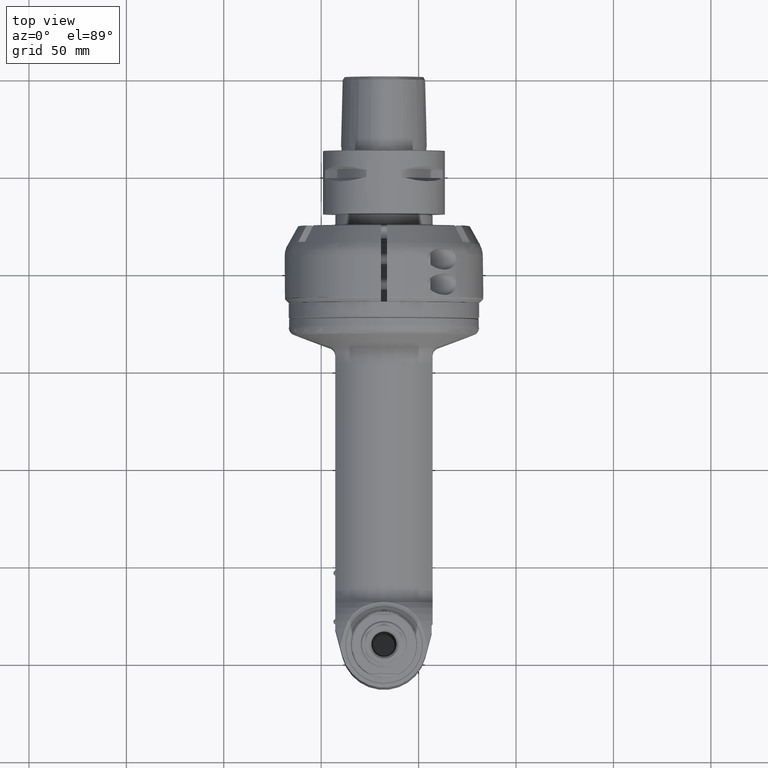
[diagram: clean part render]
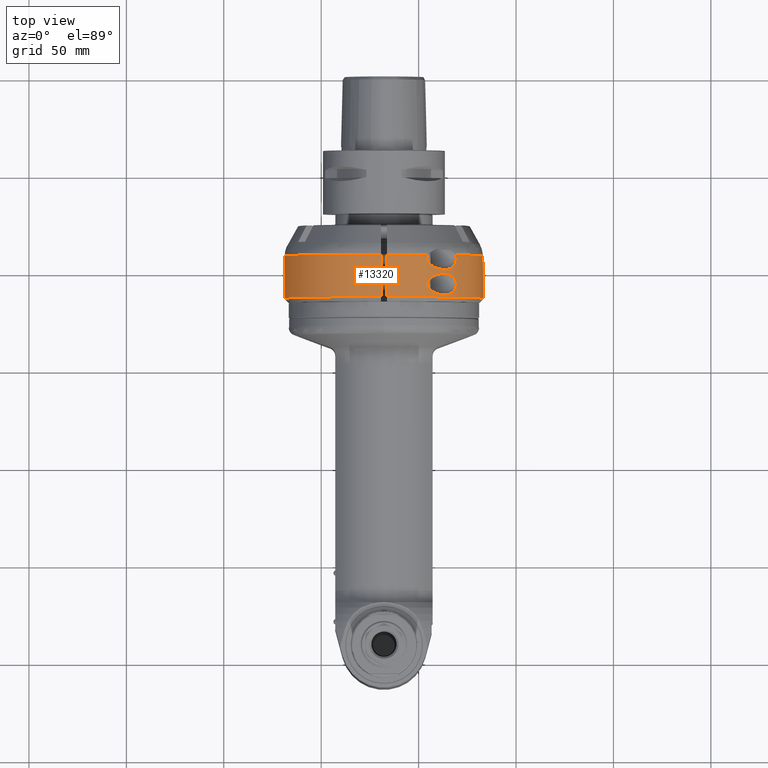
[diagram: same view with one face highlighted and labeled with its STEP entity id]
A machine part, top view. The second image highlights one B-rep face of the part: STEP entity #13320.
In plain terms, the highlighted cylindrical surface (partial cylindrical patch) has radius 51 mm, axis along (-0, -1, 0).
Its self-contained STEP definition (entity closure, byte-faithful):
#65=ELLIPSE('',#14350,144.249783362042,51.);
#66=ELLIPSE('',#14351,144.249783362042,51.);
#260=B_SPLINE_CURVE_WITH_KNOTS('',3,(#21655,#21656,#21657,#21658,#21659,
#21660),.UNSPECIFIED.,.F.,.F.,(4,2,4),(-0.220144328878827,-0.201175489980687,
0.),.UNSPECIFIED.);
#261=B_SPLINE_CURVE_WITH_KNOTS('',3,(#21661,#21662,#21663,#21664,#21665,
#21666,#21667,#21668,#21669,#21670,#21671,#21672,#21673,#21674,#21675,#21676,
#21677,#21678,#21679,#21680,#21681,#21682,#21683,#21684,#21685,#21686),
 .UNSPECIFIED.,.F.,.F.,(4,2,2,2,2,2,2,2,2,2,2,2,4),(0.,0.201175489980687,
0.402350979961374,0.726790310303929,1.05122964064648,1.44743687444551,1.84364410824453,
2.06341028648597,2.1732933756067,2.28317646472742,2.39305955384814,2.50294264296886,
2.52975105249028),.UNSPECIFIED.);
#262=B_SPLINE_CURVE_WITH_KNOTS('',3,(#21700,#21701,#21702,#21703,#21704,
#21705,#21706,#21707,#21708,#21709,#21710,#21711,#21712,#21713,#21714,#21715,
#21716,#21717,#21718,#21719,#21720,#21721,#21722),.UNSPECIFIED.,.F.,.F.,
(4,2,2,2,2,3,2,2,2,2,4),(-1.23194682408093,-0.835739590281912,-0.439532356482891,
-0.219766178241446,-0.109883089120723,0.,0.0949450193758139,0.189890038751628,
0.520032016318137,0.865269466584616,1.2105069168511),.UNSPECIFIED.);
#263=B_SPLINE_CURVE_WITH_KNOTS('',3,(#21723,#21724,#21725,#21726,#21727,
#21728,#21729,#21730,#21731,#21732,#21733,#21734,#21735,#21736,#21737,#21738,
#21739,#21740),.UNSPECIFIED.,.F.,.F.,(4,2,2,2,2,2,2,2,4),(1.2105069168511,
1.53494624719365,1.8593855775362,2.06056106751689,2.26173655749758,2.46291204747827,
2.66408753745895,2.98852686780151,3.31296619814406),.UNSPECIFIED.);
#753=LINE('',#21587,#1645);
#756=LINE('',#21644,#1648);
#757=LINE('',#21646,#1649);
#758=LINE('',#21653,#1650);
#759=LINE('',#21688,#1651);
#760=LINE('',#21697,#1652);
#1645=VECTOR('',#16318,18.52539489664);
#1648=VECTOR('',#16337,18.52539489664);
#1649=VECTOR('',#16338,0.6348591411298);
#1650=VECTOR('',#16345,0.6348591411298);
#1651=VECTOR('',#16346,21.74606856517);
#1652=VECTOR('',#16355,21.74606325158);
#2447=CYLINDRICAL_SURFACE('',#14344,51.);
#2638=FACE_BOUND('',#4061,.T.);
#3212=FACE_OUTER_BOUND('',#4060,.T.);
#4060=EDGE_LOOP('',(#9613,#9614,#9615,#9616,#9617,#9618,#9619,#9620,#9621,
#9622,#9623,#9624,#9625,#9626,#9627,#9628,#9629,#9630));
#4061=EDGE_LOOP('',(#9631,#9632));
#5046=CIRCLE('',#14342,51.);
#5047=CIRCLE('',#14343,51.);
#5048=CIRCLE('',#14345,51.);
#5049=CIRCLE('',#14346,51.);
#5050=CIRCLE('',#14347,51.);
#5051=CIRCLE('',#14348,51.);
#5052=CIRCLE('',#14349,51.);
#5053=CIRCLE('',#14352,51.);
#5903=VERTEX_POINT('',#21539);
#5904=VERTEX_POINT('',#21586);
#5909=VERTEX_POINT('',#21606);
#5910=VERTEX_POINT('',#21615);
#5911=VERTEX_POINT('',#21617);
#5912=VERTEX_POINT('',#21640);
#5913=VERTEX_POINT('',#21641);
#5914=VERTEX_POINT('',#21643);
#5915=VERTEX_POINT('',#21645);
#5916=VERTEX_POINT('',#21647);
#5917=VERTEX_POINT('',#21649);
#5918=VERTEX_POINT('',#21651);
#5919=VERTEX_POINT('',#21654);
#5920=VERTEX_POINT('',#21687);
#5921=VERTEX_POINT('',#21689);
#5922=VERTEX_POINT('',#21691);
#5923=VERTEX_POINT('',#21693);
#5924=VERTEX_POINT('',#21695);
#5925=VERTEX_POINT('',#21698);
#5926=VERTEX_POINT('',#21699);
#7328=EDGE_CURVE('',#5903,#5904,#753,.T.);
#7336=EDGE_CURVE('',#5909,#5910,#5046,.T.);
#7338=EDGE_CURVE('',#5911,#5903,#5047,.T.);
#7339=EDGE_CURVE('',#5912,#5913,#5048,.T.);
#7340=EDGE_CURVE('',#5912,#5914,#756,.T.);
#7341=EDGE_CURVE('',#5914,#5915,#757,.T.);
#7342=EDGE_CURVE('',#5916,#5915,#5049,.T.);
#7343=EDGE_CURVE('',#5917,#5916,#5050,.T.);
#7344=EDGE_CURVE('',#5918,#5917,#5051,.T.);
#7345=EDGE_CURVE('',#5918,#5904,#758,.T.);
#7346=EDGE_CURVE('',#5911,#5919,#260,.T.);
#7347=EDGE_CURVE('',#5919,#5910,#261,.T.);
#7348=EDGE_CURVE('',#5909,#5920,#759,.T.);
#7349=EDGE_CURVE('',#5921,#5920,#5052,.T.);
#7350=EDGE_CURVE('',#5922,#5921,#65,.T.);
#7351=EDGE_CURVE('',#5923,#5922,#66,.T.);
#7352=EDGE_CURVE('',#5924,#5923,#5053,.T.);
#7353=EDGE_CURVE('',#5924,#5913,#760,.T.);
#7354=EDGE_CURVE('',#5925,#5926,#262,.T.);
#7355=EDGE_CURVE('',#5926,#5925,#263,.T.);
#9613=ORIENTED_EDGE('',*,*,#7339,.F.);
#9614=ORIENTED_EDGE('',*,*,#7340,.T.);
#9615=ORIENTED_EDGE('',*,*,#7341,.T.);
#9616=ORIENTED_EDGE('',*,*,#7342,.F.);
#9617=ORIENTED_EDGE('',*,*,#7343,.F.);
#9618=ORIENTED_EDGE('',*,*,#7344,.F.);
#9619=ORIENTED_EDGE('',*,*,#7345,.T.);
#9620=ORIENTED_EDGE('',*,*,#7328,.F.);
#9621=ORIENTED_EDGE('',*,*,#7338,.F.);
#9622=ORIENTED_EDGE('',*,*,#7346,.T.);
#9623=ORIENTED_EDGE('',*,*,#7347,.T.);
#9624=ORIENTED_EDGE('',*,*,#7336,.F.);
#9625=ORIENTED_EDGE('',*,*,#7348,.T.);
#9626=ORIENTED_EDGE('',*,*,#7349,.F.);
#9627=ORIENTED_EDGE('',*,*,#7350,.F.);
#9628=ORIENTED_EDGE('',*,*,#7351,.F.);
#9629=ORIENTED_EDGE('',*,*,#7352,.F.);
#9630=ORIENTED_EDGE('',*,*,#7353,.T.);
#9631=ORIENTED_EDGE('',*,*,#7354,.T.);
#9632=ORIENTED_EDGE('',*,*,#7355,.T.);
#13320=ADVANCED_FACE('',(#3212,#2638),#2447,.T.);
#14342=AXIS2_PLACEMENT_3D('',#21616,#16329,#16330);
#14343=AXIS2_PLACEMENT_3D('',#21638,#16331,#16332);
#14344=AXIS2_PLACEMENT_3D('',#21639,#16333,#16334);
#14345=AXIS2_PLACEMENT_3D('',#21642,#16335,#16336);
#14346=AXIS2_PLACEMENT_3D('',#21648,#16339,#16340);
#14347=AXIS2_PLACEMENT_3D('',#21650,#16341,#16342);
#14348=AXIS2_PLACEMENT_3D('',#21652,#16343,#16344);
#14349=AXIS2_PLACEMENT_3D('',#21690,#16347,#16348);
#14350=AXIS2_PLACEMENT_3D('',#21692,#16349,#16350);
#14351=AXIS2_PLACEMENT_3D('',#21694,#16351,#16352);
#14352=AXIS2_PLACEMENT_3D('',#21696,#16353,#16354);
#16318=DIRECTION('',(7.82443337396E-14,-1.,5.369709178208E-14));
#16329=DIRECTION('center_axis',(0.,1.,0.));
#16330=DIRECTION('ref_axis',(0.0294117647058804,0.,0.999567380468613));
#16331=DIRECTION('center_axis',(0.,1.,0.));
#16332=DIRECTION('ref_axis',(0.719066469693323,0.,0.694941301235422));
#16333=DIRECTION('center_axis',(0.,-1.,0.));
#16334=DIRECTION('ref_axis',(1.4663902280623E-10,0.,-1.));
#16335=DIRECTION('center_axis',(0.,1.,0.));
#16336=DIRECTION('ref_axis',(-0.567273574176089,0.,-0.823529411764684));
#16337=DIRECTION('',(-7.805255841181E-14,-1.,5.369709178208E-14));
#16338=DIRECTION('',(-1.119213207666E-14,-1.,2.238426415332E-14));
#16339=DIRECTION('center_axis',(0.,1.,0.));
#16340=DIRECTION('ref_axis',(-0.54901960784313,0.,-0.835809470037146));
#16341=DIRECTION('center_axis',(0.,1.,0.));
#16342=DIRECTION('ref_axis',(0.54901960784313,0.,-0.835809470037146));
#16343=DIRECTION('center_axis',(0.,1.,0.));
#16344=DIRECTION('ref_axis',(0.567273574176089,0.,-0.823529411764684));
#16345=DIRECTION('',(6.155672642164E-14,1.,1.119213207666E-14));
#16346=DIRECTION('',(1.273469652131E-9,-1.,-3.747115976057E-11));
#16347=DIRECTION('center_axis',(0.,-1.,0.));
#16348=DIRECTION('ref_axis',(0.999826388474475,0.,0.0186331132687895));
#16349=DIRECTION('center_axis',(0.612372435695813,-0.353553390593307,-0.707106781186515));
#16350=DIRECTION('ref_axis',(-0.23145502494317,-0.935414346693472,0.267261241912441));
#16351=DIRECTION('center_axis',(0.612372435695813,-0.353553390593307,0.707106781186515));
#16352=DIRECTION('ref_axis',(0.23145502494317,0.935414346693472,0.267261241912441));
#16353=DIRECTION('center_axis',(0.,-1.,0.));
#16354=DIRECTION('ref_axis',(0.,0.,-1.));
#16355=DIRECTION('',(4.970251645951E-10,1.,1.462479987387E-11));
#21539=CARTESIAN_POINT('',(28.93095228298,24.16025403777,-42.));
#21586=CARTESIAN_POINT('',(28.93095228298,5.63485914113,-42.));
#21587=CARTESIAN_POINT('',(28.93095228298,24.16025403777,-42.));
#21606=CARTESIAN_POINT('',(1.49999997309681,24.16025403784,50.9779364046901));
#21615=CARTESIAN_POINT('',(22.92311419183,24.16025403784,45.55799420242));
#21616=CARTESIAN_POINT('Origin',(0.,24.16025403784,0.));
#21617=CARTESIAN_POINT('',(36.67238995435,24.1602540379,35.44200636301));
#21638=CARTESIAN_POINT('Origin',(0.,24.16025403784,0.));
#21639=CARTESIAN_POINT('Origin',(0.,31.,0.));
#21640=CARTESIAN_POINT('',(-28.93095228298,24.16025403777,-42.));
#21641=CARTESIAN_POINT('',(-1.49999998023586,24.1602540482335,50.9779364044794));
#21642=CARTESIAN_POINT('Origin',(0.,24.16025403784,0.));
#21643=CARTESIAN_POINT('',(-28.93095228298,5.63485914113,-42.));
#21644=CARTESIAN_POINT('',(-28.93095228298,24.16025403777,-42.));
#21645=CARTESIAN_POINT('',(-28.93095228298,5.,-42.));
#21646=CARTESIAN_POINT('',(-28.93095228298,5.63485914113,-42.));
#21647=CARTESIAN_POINT('',(-28.,5.,-42.62628297189));
#21648=CARTESIAN_POINT('Origin',(0.,5.,0.));
#21649=CARTESIAN_POINT('',(28.,5.,-42.62628297189));
#21650=CARTESIAN_POINT('Origin',(0.,5.,0.));
#21651=CARTESIAN_POINT('',(28.93095228298,5.,-42.));
#21652=CARTESIAN_POINT('Origin',(0.,5.,0.));
#21653=CARTESIAN_POINT('',(28.93095228298,5.,-42.));
#21654=CARTESIAN_POINT('',(37.094473715245,22.,35.0000002827));
#21655=CARTESIAN_POINT('Ctrl Pts',(36.6723899543635,24.1602540379089,35.4420063630023));
#21656=CARTESIAN_POINT('Ctrl Pts',(36.6960098703003,24.1030307589439,35.4175664721268));
#21657=CARTESIAN_POINT('Ctrl Pts',(36.7187524665202,24.0451285760537,35.3939854762379));
#21658=CARTESIAN_POINT('Ctrl Pts',(36.9720249281091,23.365962882206,35.1309085087689));
#21659=CARTESIAN_POINT('Ctrl Pts',(37.094473715245,22.6705849666023,35.0000002827));
#21660=CARTESIAN_POINT('Ctrl Pts',(37.094473715245,22.,35.0000002827));
#21661=CARTESIAN_POINT('Ctrl Pts',(37.094473715245,22.,35.0000002827));
#21662=CARTESIAN_POINT('Ctrl Pts',(37.094473715245,21.3294150333977,35.0000002827));
#21663=CARTESIAN_POINT('Ctrl Pts',(36.9720249281091,20.634037117794,35.1309085087689));
#21664=CARTESIAN_POINT('Ctrl Pts',(36.509126684777,19.3927469884163,35.611726144206));
#21665=CARTESIAN_POINT('Ctrl Pts',(36.1687494919773,18.8460087579151,35.9595700839234));
#21666=CARTESIAN_POINT('Ctrl Pts',(35.2033968586434,17.735791859391,36.9109847334653));
#21667=CARTESIAN_POINT('Ctrl Pts',(34.4409934800641,17.2408985110096,37.6305186458188));
#21668=CARTESIAN_POINT('Ctrl Pts',(32.7670730175023,16.6228361137413,39.0967633186736));
#21669=CARTESIAN_POINT('Ctrl Pts',(31.8547771083538,16.5,39.8427250661917));
#21670=CARTESIAN_POINT('Ctrl Pts',(29.9471832487812,16.5,41.3026686740521));
#21671=CARTESIAN_POINT('Ctrl Pts',(28.778013547493,16.6813594560049,42.1275628033903));
#21672=CARTESIAN_POINT('Ctrl Pts',(26.456979520871,17.3971650946717,43.6226298537565));
#21673=CARTESIAN_POINT('Ctrl Pts',(25.3037695427295,17.923954492565,44.2943690865695));
#21674=CARTESIAN_POINT('Ctrl Pts',(23.7624895598246,18.9924338611569,45.1302050030023));
#21675=CARTESIAN_POINT('Ctrl Pts',(23.1928172782629,19.474810450432,45.4238805293447));
#21676=CARTESIAN_POINT('Ctrl Pts',(22.5411184273514,20.3289480905375,45.7488459255632));
#21677=CARTESIAN_POINT('Ctrl Pts',(22.3578474169696,20.6350884897769,45.8382767855729));
#21678=CARTESIAN_POINT('Ctrl Pts',(22.0986788135919,21.2875037271628,45.9637780827712));
#21679=CARTESIAN_POINT('Ctrl Pts',(22.0227149550549,21.6337230362643,46.0000002827));
#21680=CARTESIAN_POINT('Ctrl Pts',(22.0227149550549,22.3662769637357,46.0000002827));
#21681=CARTESIAN_POINT('Ctrl Pts',(22.0986788135919,22.7124962728372,45.9637780827712));
#21682=CARTESIAN_POINT('Ctrl Pts',(22.3578474169696,23.3649115102231,45.8382767855729));
#21683=CARTESIAN_POINT('Ctrl Pts',(22.5411184273514,23.6710519094625,45.7488459255632));
#21684=CARTESIAN_POINT('Ctrl Pts',(22.8113501597235,24.0252263780027,45.6140966286168));
#21685=CARTESIAN_POINT('Ctrl Pts',(22.866366168842,24.0933991389679,45.5865477292858));
#21686=CARTESIAN_POINT('Ctrl Pts',(22.9231141918306,24.1602540378421,45.5579942024262));
#21687=CARTESIAN_POINT('',(1.49999998660699,2.41421355535176,50.9779364042926));
#21688=CARTESIAN_POINT('',(1.499999945521,24.16027520978,50.9779364055));
#21689=CARTESIAN_POINT('',(50.9911458122,2.414213562364,0.9502887767138));
#21690=CARTESIAN_POINT('Origin',(0.,2.414213562373,0.));
#21691=CARTESIAN_POINT('',(51.,4.330127018922,0.));
#21692=CARTESIAN_POINT('Origin',(0.,-84.0044641670873,0.));
#21693=CARTESIAN_POINT('',(50.9911458122,2.414213562368,-0.9502887767115));
#21694=CARTESIAN_POINT('Origin',(0.,-84.0044641670895,0.));
#21695=CARTESIAN_POINT('',(-1.49999998564002,2.41421355484646,50.9779364043204));
#21696=CARTESIAN_POINT('Origin',(0.,2.414213562373,0.));
#21697=CARTESIAN_POINT('',(-1.49999997128,2.414206146768,50.97793640474));
#21698=CARTESIAN_POINT('',(30.99596711028,3.5,40.5000002827));
#21699=CARTESIAN_POINT('',(30.9959671102758,14.5,40.5000002827));
#21700=CARTESIAN_POINT('Ctrl Pts',(30.9959671102758,3.5,40.5000002827));
#21701=CARTESIAN_POINT('Ctrl Pts',(29.9471832487812,3.5,41.3026686740522));
#21702=CARTESIAN_POINT('Ctrl Pts',(28.778013547493,3.68135945600489,42.1275628033903));
#21703=CARTESIAN_POINT('Ctrl Pts',(26.456979520871,4.39716509467172,43.6226298537565));
#21704=CARTESIAN_POINT('Ctrl Pts',(25.3037695427295,4.92395449256504,44.2943690865695));
#21705=CARTESIAN_POINT('Ctrl Pts',(23.7624895598246,5.99243386115686,45.1302050030023));
#21706=CARTESIAN_POINT('Ctrl Pts',(23.1928172782629,6.47481045043199,45.4238805293447));
#21707=CARTESIAN_POINT('Ctrl Pts',(22.5411184273514,7.32894809053752,45.7488459255632));
#21708=CARTESIAN_POINT('Ctrl Pts',(22.3578474169696,7.63508848977688,45.8382767855729));
#21709=CARTESIAN_POINT('Ctrl Pts',(22.0986788135919,8.28750372716278,45.9637780827712));
#21710=CARTESIAN_POINT('Ctrl Pts',(22.0227149550549,8.63372303626426,46.0000002827));
#21711=CARTESIAN_POINT('Ctrl Pts',(22.0227149550549,9.,46.0000002827));
#21712=CARTESIAN_POINT('Ctrl Pts',(22.0227149550549,9.31648339791938,46.0000002827));
#21713=CARTESIAN_POINT('Ctrl Pts',(22.0845156868871,9.6517064771444,45.9705414133334));
#21714=CARTESIAN_POINT('Ctrl Pts',(22.3158805898878,10.2791236415987,45.8586740383155));
#21715=CARTESIAN_POINT('Ctrl Pts',(22.483313327636,10.5722426936705,45.7770585076701));
#21716=CARTESIAN_POINT('Ctrl Pts',(23.2699641340394,11.6843353101904,45.3869345691662));
#21717=CARTESIAN_POINT('Ctrl Pts',(24.2526245503324,12.4029598465647,44.8752150291874));
#21718=CARTESIAN_POINT('Ctrl Pts',(26.0105214218574,13.3974425277095,43.8807323480425));
#21719=CARTESIAN_POINT('Ctrl Pts',(27.0277734960808,13.8085612622241,43.2664368855585));
#21720=CARTESIAN_POINT('Ctrl Pts',(29.06345429342,14.3611168342614,41.9261341817965));
#21721=CARTESIAN_POINT('Ctrl Pts',(30.0821032649561,14.5,41.1994099986278));
#21722=CARTESIAN_POINT('Ctrl Pts',(30.9959671102758,14.5,40.5000002827));
#21723=CARTESIAN_POINT('Ctrl Pts',(30.9959671102758,14.5,40.5000002827));
#21724=CARTESIAN_POINT('Ctrl Pts',(31.8547771083537,14.5,39.8427250661917));
#21725=CARTESIAN_POINT('Ctrl Pts',(32.7670730175023,14.3771638862587,39.0967633186736));
#21726=CARTESIAN_POINT('Ctrl Pts',(34.4409934800641,13.7591014889904,37.6305186458188));
#21727=CARTESIAN_POINT('Ctrl Pts',(35.2033968586434,13.264208140609,36.9109847334653));
#21728=CARTESIAN_POINT('Ctrl Pts',(36.1687494919773,12.1539912420849,35.9595700839234));
#21729=CARTESIAN_POINT('Ctrl Pts',(36.509126684777,11.6072530115837,35.611726144206));
#21730=CARTESIAN_POINT('Ctrl Pts',(36.9720249281091,10.365962882206,35.1309085087689));
#21731=CARTESIAN_POINT('Ctrl Pts',(37.094473715245,9.67058496660229,35.0000002827));
#21732=CARTESIAN_POINT('Ctrl Pts',(37.094473715245,8.32941503339771,35.0000002827));
#21733=CARTESIAN_POINT('Ctrl Pts',(36.9720249281091,7.63403711779401,35.1309085087689));
#21734=CARTESIAN_POINT('Ctrl Pts',(36.509126684777,6.3927469884163,35.611726144206));
#21735=CARTESIAN_POINT('Ctrl Pts',(36.1687494919773,5.84600875791506,35.9595700839234));
#21736=CARTESIAN_POINT('Ctrl Pts',(35.2033968586434,4.73579185939096,36.9109847334653));
#21737=CARTESIAN_POINT('Ctrl Pts',(34.4409934800641,4.2408985110096,37.6305186458188));
#21738=CARTESIAN_POINT('Ctrl Pts',(32.7670730175023,3.6228361137413,39.0967633186736));
#21739=CARTESIAN_POINT('Ctrl Pts',(31.8547771083537,3.5,39.8427250661917));
#21740=CARTESIAN_POINT('Ctrl Pts',(30.9959671102758,3.5,40.5000002827));